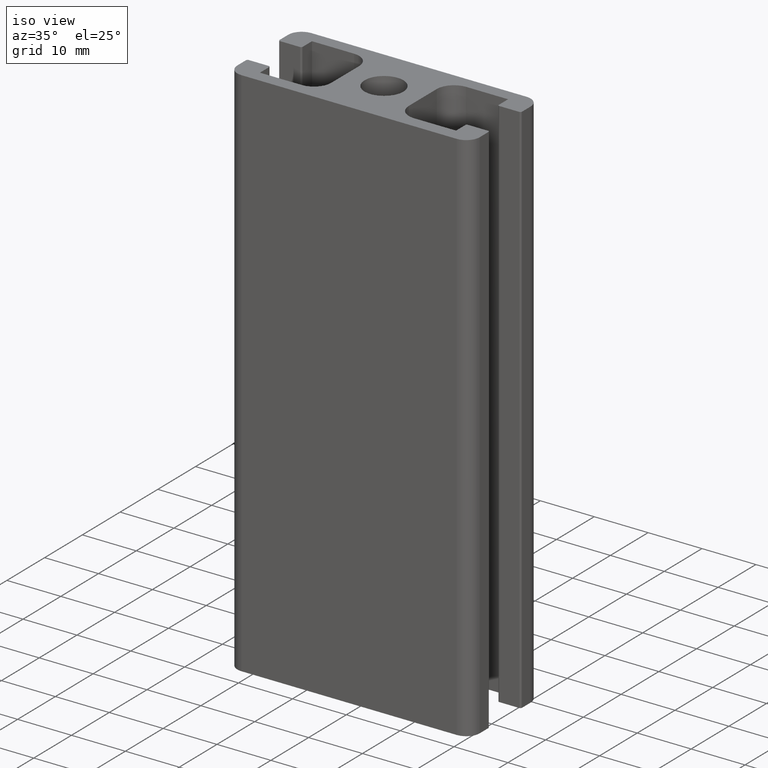
[diagram: clean part render]
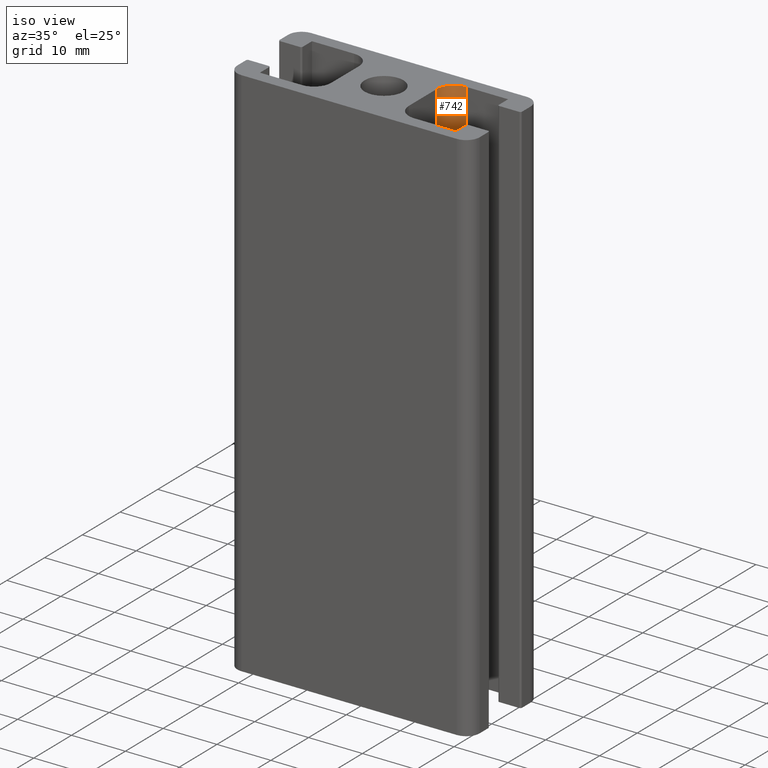
[diagram: same view with one face highlighted and labeled with its STEP entity id]
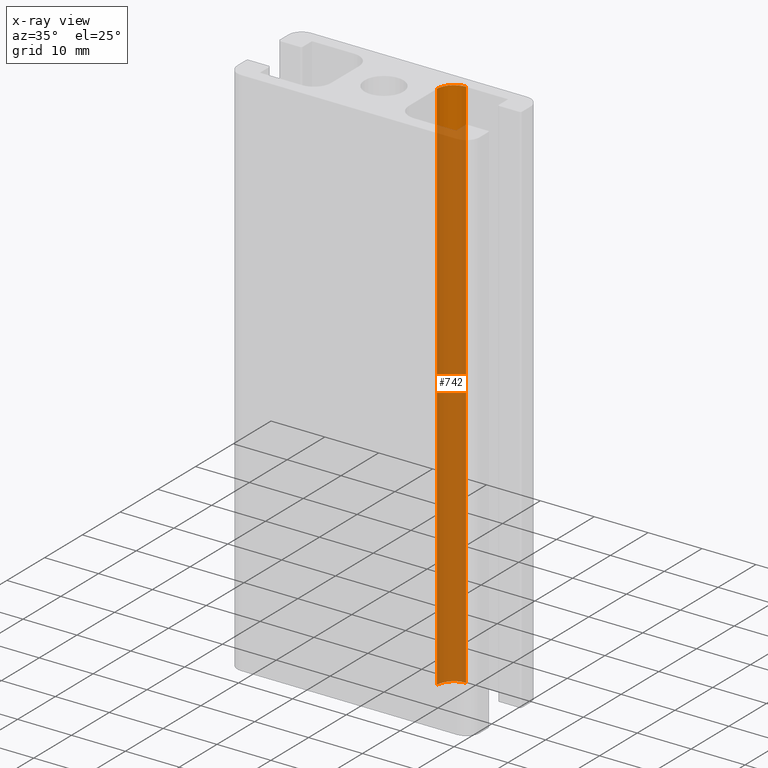
[diagram: x-ray of the same camera — body ghosted, the highlighted face saturated]
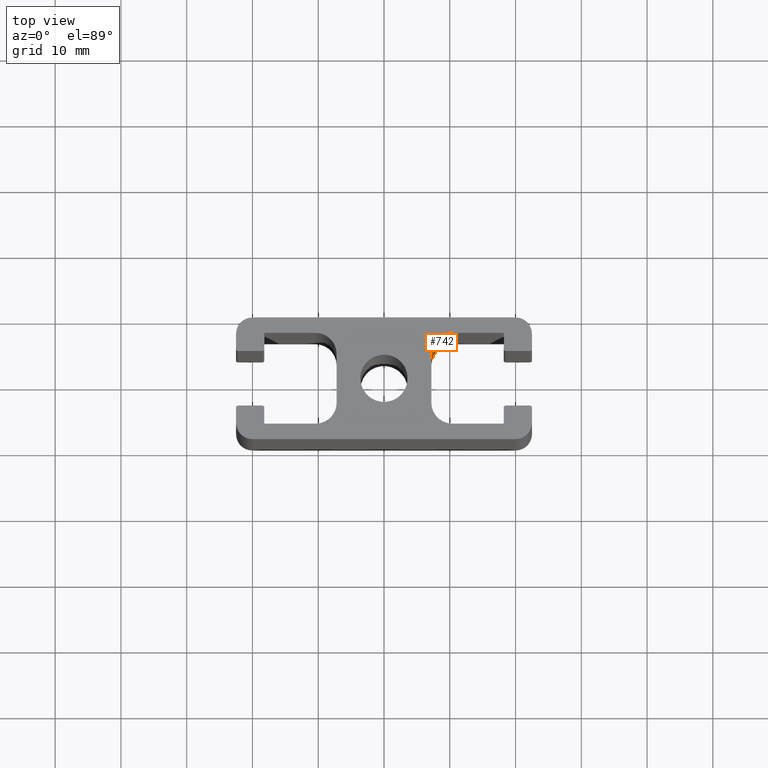
[diagram: same view with one face highlighted and labeled with its STEP entity id]
A machine part, iso view. The second image highlights one B-rep face of the part: STEP entity #742.
The next image is the same camera in x-ray: the body ghosted, the highlighted face saturated — about 93% of this face is hidden behind the body in this view.
A second angle (top view) of the same face is appended — the face is thin or edge-on in the first view.
In plain terms, the highlighted cylindrical surface (edge-blend (fillet) strip) has radius 3.2 mm, axis along (0, 0, 1).
Its self-contained STEP definition (entity closure, byte-faithful):
#65=LINE('',#1158,#141);
#66=LINE('',#1161,#142);
#141=VECTOR('',#932,100.);
#142=VECTOR('',#935,100.);
#206=FACE_OUTER_BOUND('',#246,.T.);
#246=EDGE_LOOP('',(#545,#546,#547,#548));
#287=CIRCLE('',#798,3.1999999999936);
#288=CIRCLE('',#799,3.1999999999936);
#337=VERTEX_POINT('',#1154);
#338=VERTEX_POINT('',#1155);
#339=VERTEX_POINT('',#1157);
#340=VERTEX_POINT('',#1159);
#423=EDGE_CURVE('',#337,#338,#287,.T.);
#424=EDGE_CURVE('',#339,#337,#65,.T.);
#425=EDGE_CURVE('',#340,#339,#288,.T.);
#426=EDGE_CURVE('',#340,#338,#66,.T.);
#545=ORIENTED_EDGE('',*,*,#423,.F.);
#546=ORIENTED_EDGE('',*,*,#424,.F.);
#547=ORIENTED_EDGE('',*,*,#425,.F.);
#548=ORIENTED_EDGE('',*,*,#426,.T.);
#718=CYLINDRICAL_SURFACE('',#797,3.1999999999936);
#742=ADVANCED_FACE('',(#206),#718,.F.);
#797=AXIS2_PLACEMENT_3D('',#1153,#928,#929);
#798=AXIS2_PLACEMENT_3D('',#1156,#930,#931);
#799=AXIS2_PLACEMENT_3D('',#1160,#933,#934);
#928=DIRECTION('center_axis',(0.,0.,1.));
#929=DIRECTION('ref_axis',(-1.99840144432928E-12,1.,0.));
#930=DIRECTION('center_axis',(0.,0.,-1.));
#931=DIRECTION('ref_axis',(-1.99840144432928E-12,1.,0.));
#932=DIRECTION('',(0.,0.,1.));
#933=DIRECTION('center_axis',(0.,0.,1.));
#934=DIRECTION('ref_axis',(-1.99840144432928E-12,1.,0.));
#935=DIRECTION('',(0.,0.,1.));
#1153=CARTESIAN_POINT('Origin',(10.4000000000064,3.7000000000064,0.));
#1154=CARTESIAN_POINT('',(7.2000000000128,3.7,100.));
#1155=CARTESIAN_POINT('',(10.4,6.9,100.));
#1156=CARTESIAN_POINT('Origin',(10.4000000000064,3.7000000000064,100.));
#1157=CARTESIAN_POINT('',(7.2000000000128,3.7,0.));
#1158=CARTESIAN_POINT('',(7.2000000000128,3.7,0.));
#1159=CARTESIAN_POINT('',(10.4,6.9,0.));
#1160=CARTESIAN_POINT('Origin',(10.4000000000064,3.7000000000064,0.));
#1161=CARTESIAN_POINT('',(10.4,6.9,0.));